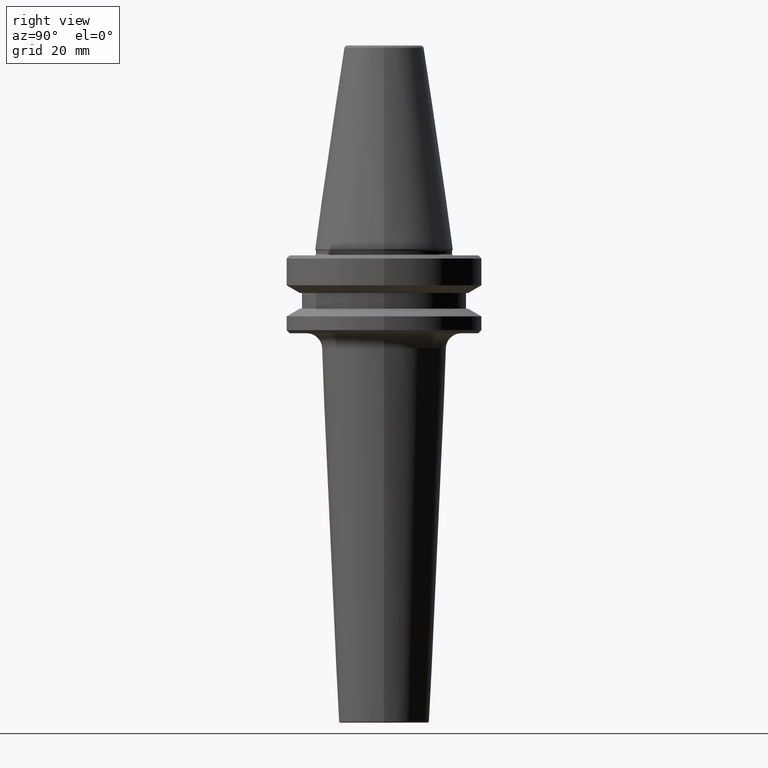
[diagram: clean part render]
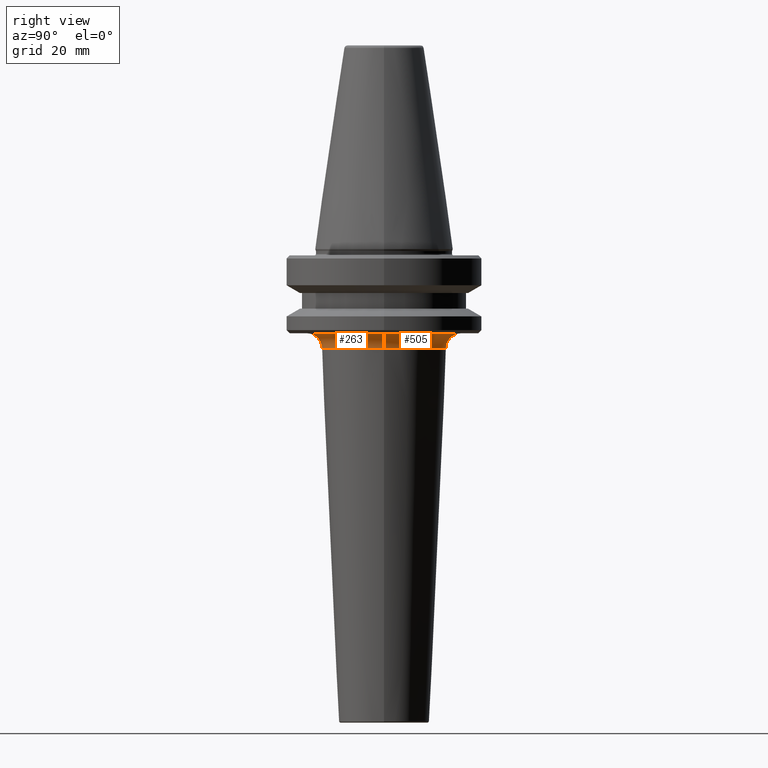
[diagram: same view with one multi-face feature highlighted, each face labeled with its STEP entity id]
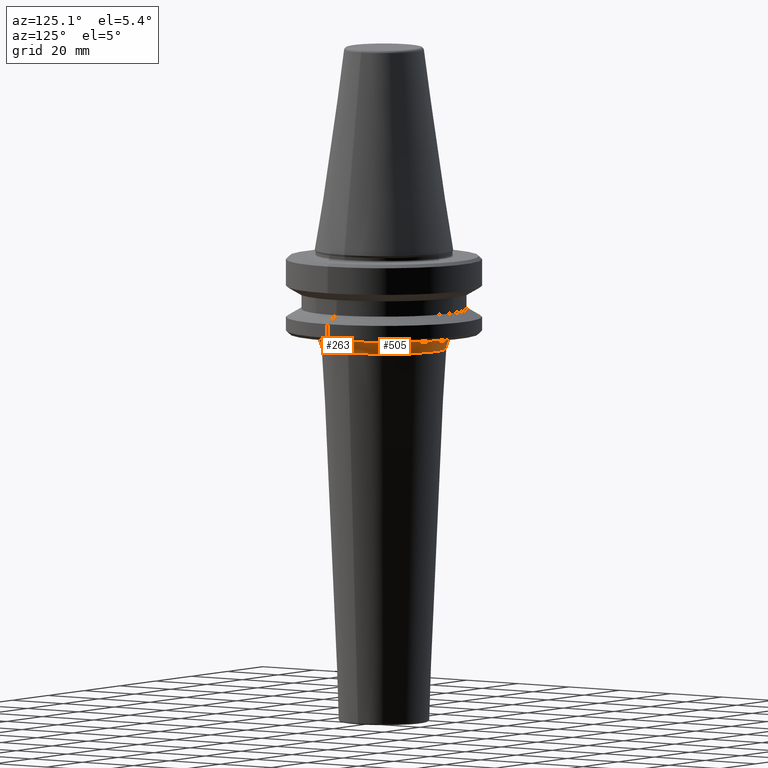
[diagram: same view with one multi-face feature highlighted, each face labeled with its STEP entity id]
A machine part, right view. The highlighted faces form ONE feature: a constant-radius fillet chain: 2 tangent blend faces with common blend radius 5 mm. The faces share edges in the B-rep.
A second angle (auxiliary view) of the same feature is appended — it is thin or edge-on in the first view.
Their STEP definitions:
[1] entity #263 (Torus):
#2 = EDGE_LOOP ( 'NONE', ( #637, #651, #67, #163 ) ) ;
#67 = ORIENTED_EDGE ( 'NONE', *, *, #167, .T. ) ;
#87 = EDGE_CURVE ( 'NONE', #984, #1013, #521, .T. ) ;
#95 = CIRCLE ( 'NONE', #155, 4.999999999999993800 ) ;
#124 = AXIS2_PLACEMENT_3D ( 'NONE', #302, #866, #386 ) ;
#155 = AXIS2_PLACEMENT_3D ( 'NONE', #402, #950, #478 ) ;
#163 = ORIENTED_EDGE ( 'NONE', *, *, #742, .F. ) ;
#167 = EDGE_CURVE ( 'NONE', #769, #469, #745, .T. ) ;
#171 = DIRECTION ( 'NONE',  ( -0.0000000000000000000, -0.0000000000000000000, 1.000000000000000000 ) ) ;
#175 = CARTESIAN_POINT ( 'NONE',  ( -24.99477640379319300, 3.060977291830912200E-015, -92.40000000000802100 ) ) ;
#263 = ADVANCED_FACE ( 'NONE', ( #905 ), #800, .F. ) ;
#302 = CARTESIAN_POINT ( 'NONE',  ( 0.0000000000000000000, 0.0000000000000000000, -97.17150782046840600 ) ) ;
#308 = DIRECTION ( 'NONE',  ( 0.0000000000000000000, -1.000000000000000000, 0.0000000000000000000 ) ) ;
#333 = DIRECTION ( 'NONE',  ( -0.0000000000000000000, -0.0000000000000000000, 1.000000000000000000 ) ) ;
#386 = DIRECTION ( 'NONE',  ( 1.000000000000000000, 0.0000000000000000000, 0.0000000000000000000 ) ) ;
#402 = CARTESIAN_POINT ( 'NONE',  ( -24.99477640379319300, 3.060977291830912600E-015, -97.40000000000800600 ) ) ;
#469 = VERTEX_POINT ( 'NONE', #729 ) ;
#478 = DIRECTION ( 'NONE',  ( -1.000000000000000000, 1.224646799147353700E-016, 0.0000000000000000000 ) ) ;
#494 = CIRCLE ( 'NONE', #618, 4.999999999999990200 ) ;
#521 = CIRCLE ( 'NONE', #649, 24.99477640379319300 ) ;
#546 = CARTESIAN_POINT ( 'NONE',  ( -20.00000000000000400, 2.755135445062810000E-015, -97.17150782046840600 ) ) ;
#618 = AXIS2_PLACEMENT_3D ( 'NONE', #793, #308, #871 ) ;
#637 = ORIENTED_EDGE ( 'NONE', *, *, #87, .F. ) ;
#649 = AXIS2_PLACEMENT_3D ( 'NONE', #821, #333, #895 ) ;
#651 = ORIENTED_EDGE ( 'NONE', *, *, #1001, .T. ) ;
#729 = CARTESIAN_POINT ( 'NONE',  ( 20.00000000000000400, 0.0000000000000000000, -97.17150782046840600 ) ) ;
#742 = EDGE_CURVE ( 'NONE', #1013, #469, #494, .T. ) ;
#745 = CIRCLE ( 'NONE', #124, 20.00000000000000400 ) ;
#769 = VERTEX_POINT ( 'NONE', #546 ) ;
#793 = CARTESIAN_POINT ( 'NONE',  ( 24.99477640379319300, 0.0000000000000000000, -97.40000000000800600 ) ) ;
#800 = TOROIDAL_SURFACE ( 'NONE', #935, 24.99477640379319300, 4.999999999999993800 ) ;
#821 = CARTESIAN_POINT ( 'NONE',  ( 0.0000000000000000000, 0.0000000000000000000, -92.40000000000802100 ) ) ;
#866 = DIRECTION ( 'NONE',  ( -0.0000000000000000000, -0.0000000000000000000, 1.000000000000000000 ) ) ;
#871 = DIRECTION ( 'NONE',  ( 0.0000000000000000000, 0.0000000000000000000, -1.000000000000000000 ) ) ;
#895 = DIRECTION ( 'NONE',  ( 1.000000000000000000, 0.0000000000000000000, 0.0000000000000000000 ) ) ;
#899 = CARTESIAN_POINT ( 'NONE',  ( 0.0000000000000000000, 0.0000000000000000000, -97.40000000000800600 ) ) ;
#905 = FACE_OUTER_BOUND ( 'NONE', #2, .T. ) ;
#935 = AXIS2_PLACEMENT_3D ( 'NONE', #899, #171, #981 ) ;
#950 = DIRECTION ( 'NONE',  ( 1.224646799147353200E-016, 1.000000000000000000, 0.0000000000000000000 ) ) ;
#981 = DIRECTION ( 'NONE',  ( 1.000000000000000000, 0.0000000000000000000, 0.0000000000000000000 ) ) ;
#984 = VERTEX_POINT ( 'NONE', #175 ) ;
#1001 = EDGE_CURVE ( 'NONE', #984, #769, #95, .T. ) ;
#1013 = VERTEX_POINT ( 'NONE', #1032 ) ;
#1032 = CARTESIAN_POINT ( 'NONE',  ( 24.99477640379319300, 0.0000000000000000000, -92.40000000000802100 ) ) ;
[2] entity #505 (Torus):
#3 = ORIENTED_EDGE ( 'NONE', *, *, #92, .T. ) ;
#92 = EDGE_CURVE ( 'NONE', #469, #769, #939, .T. ) ;
#95 = CIRCLE ( 'NONE', #155, 4.999999999999993800 ) ;
#155 = AXIS2_PLACEMENT_3D ( 'NONE', #402, #950, #478 ) ;
#175 = CARTESIAN_POINT ( 'NONE',  ( -24.99477640379319300, 3.060977291830912200E-015, -92.40000000000802100 ) ) ;
#242 = DIRECTION ( 'NONE',  ( -0.0000000000000000000, -0.0000000000000000000, 1.000000000000000000 ) ) ;
#282 = DIRECTION ( 'NONE',  ( -0.0000000000000000000, -0.0000000000000000000, 1.000000000000000000 ) ) ;
#294 = AXIS2_PLACEMENT_3D ( 'NONE', #942, #475, #1024 ) ;
#298 = ORIENTED_EDGE ( 'NONE', *, *, #742, .T. ) ;
#308 = DIRECTION ( 'NONE',  ( 0.0000000000000000000, -1.000000000000000000, 0.0000000000000000000 ) ) ;
#327 = CIRCLE ( 'NONE', #294, 24.99477640379319300 ) ;
#402 = CARTESIAN_POINT ( 'NONE',  ( -24.99477640379319300, 3.060977291830912600E-015, -97.40000000000800600 ) ) ;
#404 = FACE_OUTER_BOUND ( 'NONE', #988, .T. ) ;
#469 = VERTEX_POINT ( 'NONE', #729 ) ;
#475 = DIRECTION ( 'NONE',  ( -0.0000000000000000000, -0.0000000000000000000, 1.000000000000000000 ) ) ;
#478 = DIRECTION ( 'NONE',  ( -1.000000000000000000, 1.224646799147353700E-016, 0.0000000000000000000 ) ) ;
#494 = CIRCLE ( 'NONE', #618, 4.999999999999990200 ) ;
#505 = ADVANCED_FACE ( 'NONE', ( #404 ), #589, .F. ) ;
#526 = ORIENTED_EDGE ( 'NONE', *, *, #1001, .F. ) ;
#546 = CARTESIAN_POINT ( 'NONE',  ( -20.00000000000000400, 2.755135445062810000E-015, -97.17150782046840600 ) ) ;
#571 = DIRECTION ( 'NONE',  ( 1.000000000000000000, 0.0000000000000000000, 0.0000000000000000000 ) ) ;
#589 = TOROIDAL_SURFACE ( 'NONE', #643, 24.99477640379319300, 4.999999999999993800 ) ;
#618 = AXIS2_PLACEMENT_3D ( 'NONE', #793, #308, #871 ) ;
#627 = EDGE_CURVE ( 'NONE', #1013, #984, #327, .T. ) ;
#643 = AXIS2_PLACEMENT_3D ( 'NONE', #887, #242, #571 ) ;
#729 = CARTESIAN_POINT ( 'NONE',  ( 20.00000000000000400, 0.0000000000000000000, -97.17150782046840600 ) ) ;
#742 = EDGE_CURVE ( 'NONE', #1013, #469, #494, .T. ) ;
#744 = ORIENTED_EDGE ( 'NONE', *, *, #627, .F. ) ;
#769 = VERTEX_POINT ( 'NONE', #546 ) ;
#771 = CARTESIAN_POINT ( 'NONE',  ( 0.0000000000000000000, 0.0000000000000000000, -97.17150782046840600 ) ) ;
#793 = CARTESIAN_POINT ( 'NONE',  ( 24.99477640379319300, 0.0000000000000000000, -97.40000000000800600 ) ) ;
#806 = AXIS2_PLACEMENT_3D ( 'NONE', #771, #282, #847 ) ;
#847 = DIRECTION ( 'NONE',  ( 1.000000000000000000, 0.0000000000000000000, 0.0000000000000000000 ) ) ;
#871 = DIRECTION ( 'NONE',  ( 0.0000000000000000000, 0.0000000000000000000, -1.000000000000000000 ) ) ;
#887 = CARTESIAN_POINT ( 'NONE',  ( 0.0000000000000000000, 0.0000000000000000000, -97.40000000000800600 ) ) ;
#939 = CIRCLE ( 'NONE', #806, 20.00000000000000400 ) ;
#942 = CARTESIAN_POINT ( 'NONE',  ( 0.0000000000000000000, 0.0000000000000000000, -92.40000000000802100 ) ) ;
#950 = DIRECTION ( 'NONE',  ( 1.224646799147353200E-016, 1.000000000000000000, 0.0000000000000000000 ) ) ;
#984 = VERTEX_POINT ( 'NONE', #175 ) ;
#988 = EDGE_LOOP ( 'NONE', ( #526, #744, #298, #3 ) ) ;
#1001 = EDGE_CURVE ( 'NONE', #984, #769, #95, .T. ) ;
#1013 = VERTEX_POINT ( 'NONE', #1032 ) ;
#1024 = DIRECTION ( 'NONE',  ( 1.000000000000000000, 0.0000000000000000000, 0.0000000000000000000 ) ) ;
#1032 = CARTESIAN_POINT ( 'NONE',  ( 24.99477640379319300, 0.0000000000000000000, -92.40000000000802100 ) ) ;